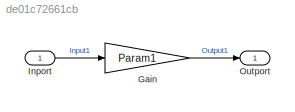
MODEL slx_de01c72661cb
KIND model
CONFIG AbsTol = auto
CONFIG EnableMultiTasking = off
CONFIG FixedStep = auto
CONFIG MaxStep = auto
CONFIG MinStep = auto
CONFIG RelTol = 1e-3
CONFIG SampleTimeConstraint = Unconstrained
CONFIG SolverName = FixedStepAuto
CONFIG StartTime = 0.0
CONFIG StopTime = 10.0
WORKSPACE source: mxarray member
WORKSPACE Param1 = 1
BLOCK [Gain] Gain
  Gain = Param1
  OutDataTypeStr = int32
  ParamDataTypeStr = int32
BLOCK [Inport] Inport
BLOCK [Outport] Outport
LINE Gain:1 -> Outport:1
LINE Inport:1 -> Gain:1
